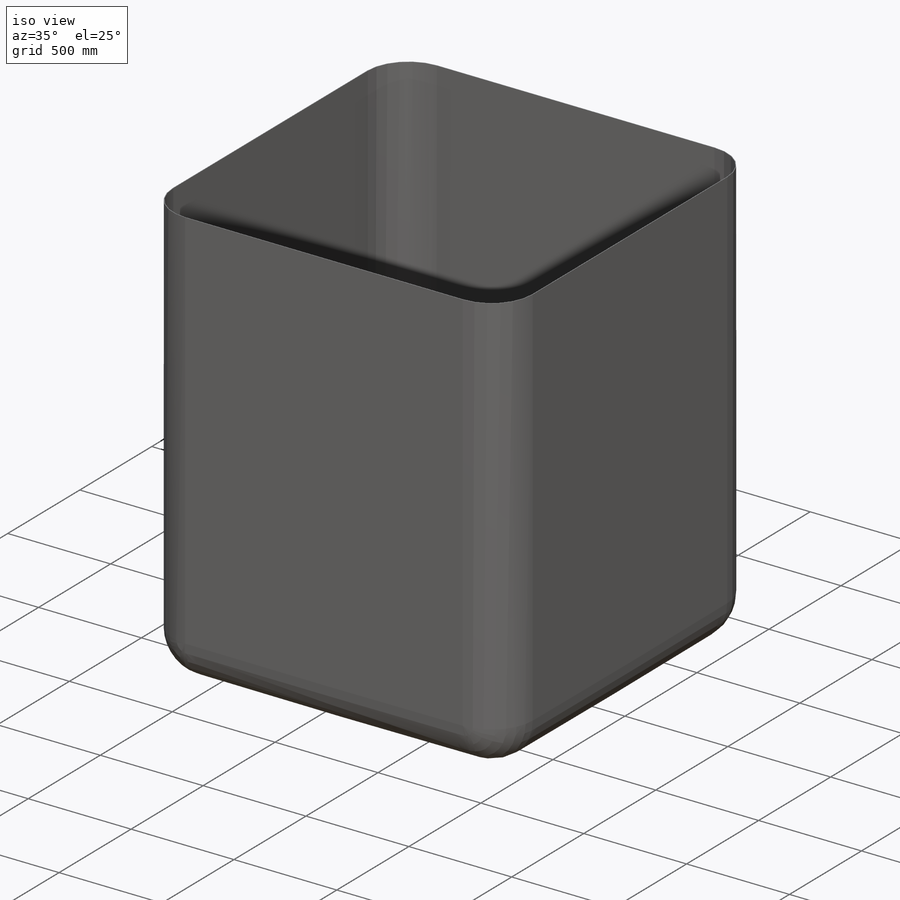
[diagram: iso view]
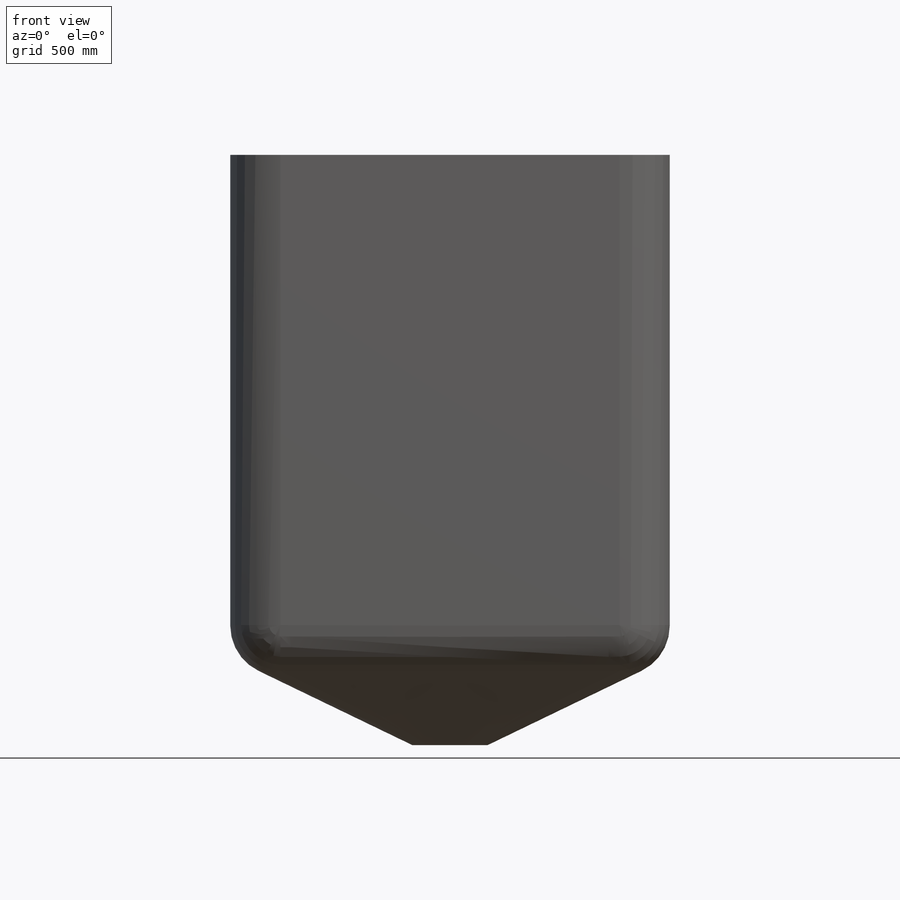
[diagram: front view]
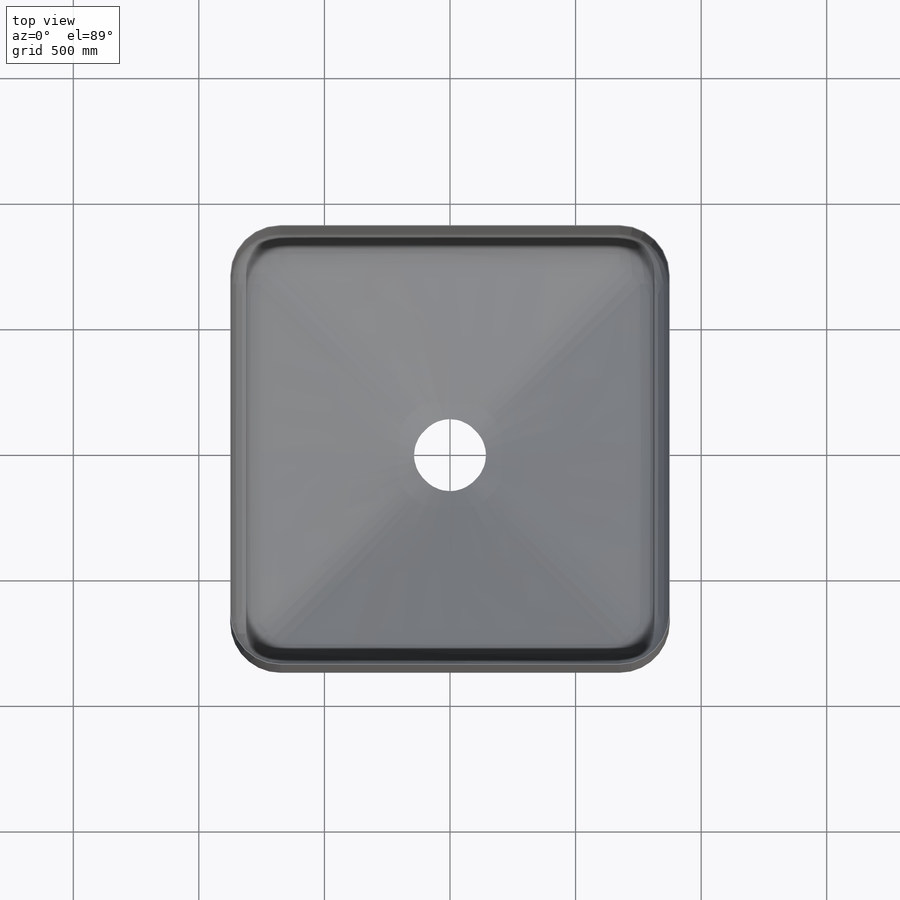
[diagram: top view]
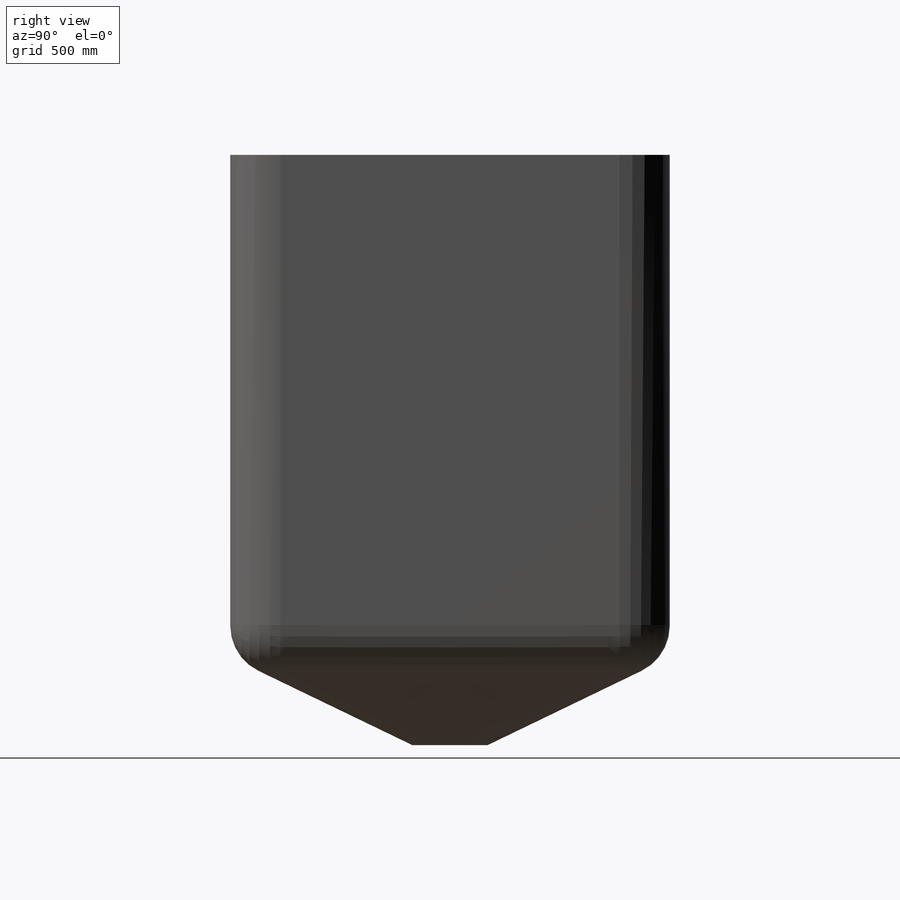
[diagram: right view]
SOLIDWORKS PART (.sldprt)
format: sldprt  version: not decoded by parser v0  size: 402,944 bytes
history: native  units: mm
features: plane x4, sketch x3, fillet x2, material x1, extrude x1, shell x1 (+9 scaffold rows collapsed)
feature tree (21):
  scaffold x9  (default folders/planes/origin — collapsed)
  material  "Material <nicht festgelegt>"
  plane  "Ebene vorne"
  plane  "Ebene oben"
  plane  "Ebene rechts"
  sketch  "Skizze1"  dims[D1=1750.0mm D2=1750.0mm]
  extrude  "Aufsatz-Linear austragen1"  Depth=2000mm
  plane  "Ebene1"  Offset=350mm
  sketch  "Skizze2"  dims[D1=300.0mm]
  sketch  "Skizze3"  dims[D1=0.0mm]
  fillet  "Verrundung1"  Radius=200mm
  fillet  "Verrundung2"  Radius=200mm
  shell  "Wandung1"  Thickness=3mm
decode coverage: 7 of 7 modeling features carry decoded parameters
note: suppression state not decoded; provenance and decode notes live in map.json
